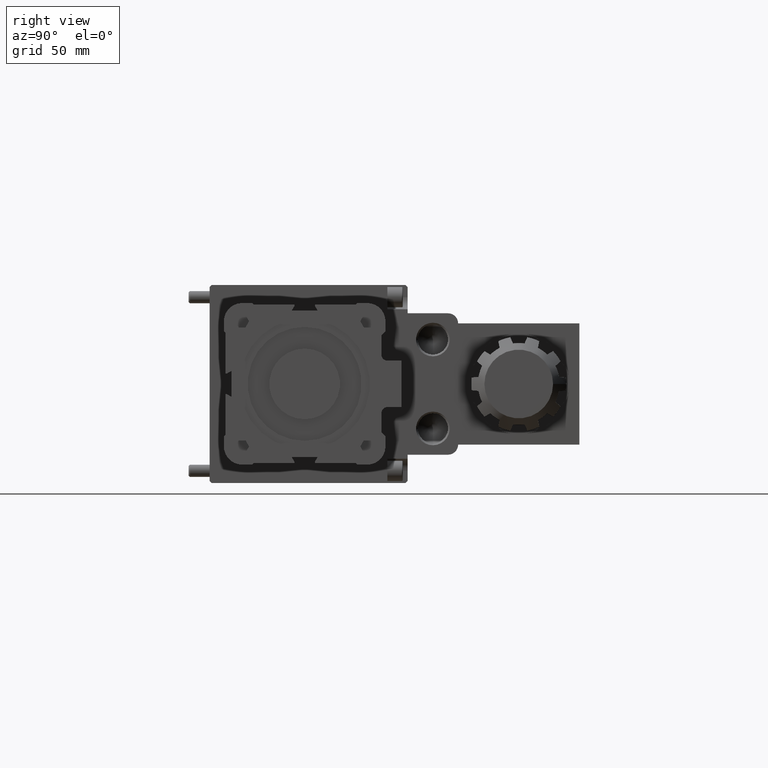
[diagram: clean part render]
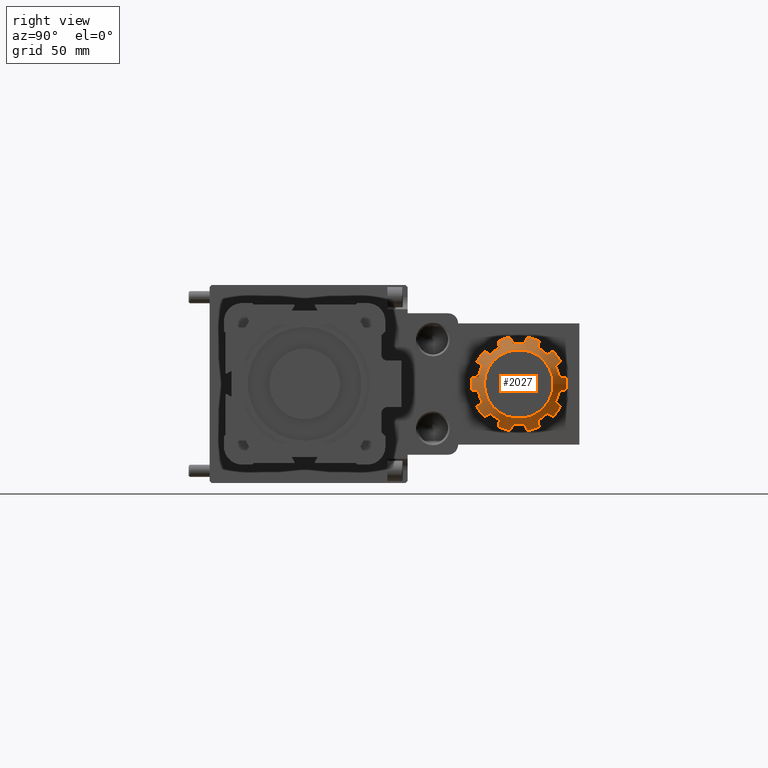
[diagram: same view with one face highlighted and labeled with its STEP entity id]
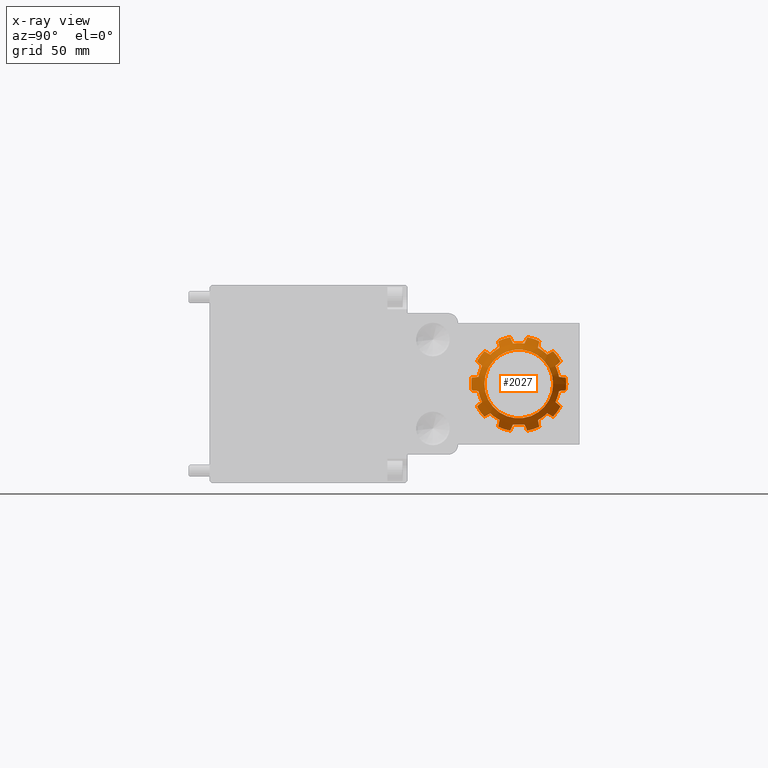
[diagram: x-ray of the same camera — body ghosted, the highlighted face saturated]
A machine part, right view. The second image highlights one B-rep face of the part: STEP entity #2027.
The next image is the same camera in x-ray: the body ghosted, the highlighted face saturated — about 0% of this face is hidden behind the body in this view.
In plain terms, the highlighted conical surface has half-angle 45 deg.
Its self-contained STEP definition (entity closure, byte-faithful):
#2027 = ADVANCED_FACE( '', ( #4268, #4269 ), #4270, .T. );
#4268 = FACE_OUTER_BOUND( '', #6651, .T. );
#4269 = FACE_BOUND( '', #6652, .T. );
#4270 = CONICAL_SURFACE( '', #6653, 17.0000000000000, 0.785398163397448 );
#6651 = EDGE_LOOP( '', ( #11964, #11965, #11966, #11967, #11968, #11969, #11970, #11971, #11972, #11973, #11974, #11975, #11976, #11977, #11978, #11979, #11980, #11981, #11982, #11983, #11984, #11985, #11986, #11987, #11988, #11989, #11990, #11991, #11992, #11993, #11994, #11995, #11996, #11997, #11998, #11999, #12000, #12001, #12002, #12003 ) );
#6652 = EDGE_LOOP( '', ( #12004 ) );
#6653 = AXIS2_PLACEMENT_3D( '', #12005, #12006, #12007 );
#11964 = ORIENTED_EDGE( '', *, *, #13402, .T. );
#11965 = ORIENTED_EDGE( '', *, *, #13419, .T. );
#11966 = ORIENTED_EDGE( '', *, *, #15270, .F. );
#11967 = ORIENTED_EDGE( '', *, *, #15248, .T. );
#11968 = ORIENTED_EDGE( '', *, *, #15295, .T. );
#11969 = ORIENTED_EDGE( '', *, *, #14880, .T. );
#11970 = ORIENTED_EDGE( '', *, *, #14302, .F. );
#11971 = ORIENTED_EDGE( '', *, *, #14839, .T. );
#11972 = ORIENTED_EDGE( '', *, *, #15296, .T. );
#11973 = ORIENTED_EDGE( '', *, *, #13453, .T. );
#11974 = ORIENTED_EDGE( '', *, *, #14888, .F. );
#11975 = ORIENTED_EDGE( '', *, *, #13285, .T. );
#11976 = ORIENTED_EDGE( '', *, *, #14863, .T. );
#11977 = ORIENTED_EDGE( '', *, *, #15261, .T. );
#11978 = ORIENTED_EDGE( '', *, *, #15268, .F. );
#11979 = ORIENTED_EDGE( '', *, *, #13685, .T. );
#11980 = ORIENTED_EDGE( '', *, *, #15297, .T. );
#11981 = ORIENTED_EDGE( '', *, *, #15080, .T. );
#11982 = ORIENTED_EDGE( '', *, *, #15191, .F. );
#11983 = ORIENTED_EDGE( '', *, *, #14650, .T. );
#11984 = ORIENTED_EDGE( '', *, *, #14299, .T. );
#11985 = ORIENTED_EDGE( '', *, *, #15298, .T. );
#11986 = ORIENTED_EDGE( '', *, *, #15299, .F. );
#11987 = ORIENTED_EDGE( '', *, *, #14364, .T. );
#11988 = ORIENTED_EDGE( '', *, *, #15300, .T. );
#11989 = ORIENTED_EDGE( '', *, *, #13609, .T. );
#11990 = ORIENTED_EDGE( '', *, *, #14859, .F. );
#11991 = ORIENTED_EDGE( '', *, *, #14685, .T. );
#11992 = ORIENTED_EDGE( '', *, *, #14620, .T. );
#11993 = ORIENTED_EDGE( '', *, *, #14380, .T. );
#11994 = ORIENTED_EDGE( '', *, *, #15225, .F. );
#11995 = ORIENTED_EDGE( '', *, *, #15031, .T. );
#11996 = ORIENTED_EDGE( '', *, *, #15301, .T. );
#11997 = ORIENTED_EDGE( '', *, *, #13601, .T. );
#11998 = ORIENTED_EDGE( '', *, *, #15010, .F. );
#11999 = ORIENTED_EDGE( '', *, *, #14103, .T. );
#12000 = ORIENTED_EDGE( '', *, *, #13791, .T. );
#12001 = ORIENTED_EDGE( '', *, *, #15142, .T. );
#12002 = ORIENTED_EDGE( '', *, *, #14993, .F. );
#12003 = ORIENTED_EDGE( '', *, *, #14124, .T. );
#12004 = ORIENTED_EDGE( '', *, *, #15302, .T. );
#12005 = CARTESIAN_POINT( '', ( 0.000000000000000, 66.3000000000000, 0.000000000000000 ) );
#12006 = DIRECTION( '', ( -0.000000000000000, -1.00000000000000, -0.000000000000000 ) );
#12007 = DIRECTION( '', ( 0.000000000000000, 0.000000000000000, -1.00000000000000 ) );
#13285 = EDGE_CURVE( '', #15667, #15671, #15673, .T. );
#13402 = EDGE_CURVE( '', #15870, #15875, #15877, .F. );
#13419 = EDGE_CURVE( '', #15875, #15902, #15904, .T. );
#13453 = EDGE_CURVE( '', #15957, #15962, #15964, .T. );
#13601 = EDGE_CURVE( '', #16211, #16216, #16218, .T. );
#13609 = EDGE_CURVE( '', #16223, #16228, #16230, .T. );
#13685 = EDGE_CURVE( '', #16351, #16355, #16357, .T. );
#13791 = EDGE_CURVE( '', #16533, #16538, #16540, .F. );
#14103 = EDGE_CURVE( '', #17039, #16533, #17042, .T. );
#14124 = EDGE_CURVE( '', #17072, #15870, #17075, .T. );
#14299 = EDGE_CURVE( '', #17336, #17340, #17342, .F. );
#14302 = EDGE_CURVE( '', #17344, #17346, #17347, .T. );
#14364 = EDGE_CURVE( '', #17435, #17437, #17439, .T. );
#14380 = EDGE_CURVE( '', #17458, #17460, #17462, .T. );
#14620 = EDGE_CURVE( '', #17812, #17458, #17816, .F. );
#14650 = EDGE_CURVE( '', #17858, #17336, #17861, .T. );
#14685 = EDGE_CURVE( '', #17904, #17812, #17907, .T. );
#14839 = EDGE_CURVE( '', #17344, #18145, #18147, .T. );
#14859 = EDGE_CURVE( '', #17904, #16228, #18172, .T. );
#14863 = EDGE_CURVE( '', #15671, #18176, #18178, .F. );
#14880 = EDGE_CURVE( '', #18197, #17346, #18199, .T. );
#14888 = EDGE_CURVE( '', #15667, #15962, #18211, .T. );
#14993 = EDGE_CURVE( '', #17072, #18342, #18343, .T. );
#15010 = EDGE_CURVE( '', #17039, #16216, #18362, .T. );
#15031 = EDGE_CURVE( '', #18385, #18387, #18389, .T. );
#15080 = EDGE_CURVE( '', #18448, #18450, #18452, .T. );
#15142 = EDGE_CURVE( '', #16538, #18342, #18534, .T. );
#15191 = EDGE_CURVE( '', #17858, #18450, #18594, .T. );
#15225 = EDGE_CURVE( '', #18385, #17460, #18631, .T. );
#15248 = EDGE_CURVE( '', #18653, #18655, #18657, .T. );
#15261 = EDGE_CURVE( '', #18176, #18670, #18672, .T. );
#15268 = EDGE_CURVE( '', #16351, #18670, #18680, .T. );
#15270 = EDGE_CURVE( '', #18653, #15902, #18682, .T. );
#15295 = EDGE_CURVE( '', #18655, #18197, #18714, .F. );
#15296 = EDGE_CURVE( '', #18145, #15957, #18715, .F. );
#15297 = EDGE_CURVE( '', #16355, #18448, #18716, .F. );
#15298 = EDGE_CURVE( '', #17340, #18717, #18718, .T. );
#15299 = EDGE_CURVE( '', #17435, #18717, #18719, .T. );
#15300 = EDGE_CURVE( '', #17437, #16223, #18720, .F. );
#15301 = EDGE_CURVE( '', #18387, #16211, #18721, .F. );
#15302 = EDGE_CURVE( '', #18722, #18722, #18723, .T. );
#15667 = VERTEX_POINT( '', #19166 );
#15671 = VERTEX_POINT( '', #19176 );
#15673 = B_SPLINE_CURVE_WITH_KNOTS( '', 3, ( #19179, #19180, #19181, #19182 ), .UNSPECIFIED., .F., .F., ( 4, 4 ), ( 2.87013076695435E-007, 0.00467583338042863 ), .UNSPECIFIED. );
#15870 = VERTEX_POINT( '', #19436 );
#15875 = VERTEX_POINT( '', #19442 );
#15877 = CIRCLE( '', #19445, 20.2500000000001 );
#15902 = VERTEX_POINT( '', #19485 );
#15904 = B_SPLINE_CURVE_WITH_KNOTS( '', 3, ( #19490, #19491, #19492, #19493 ), .UNSPECIFIED., .F., .F., ( 4, 4 ), ( 3.03705268467191E-007, 0.00467585007262032 ), .UNSPECIFIED. );
#15957 = VERTEX_POINT( '', #19565 );
#15962 = VERTEX_POINT( '', #19574 );
#15964 = B_SPLINE_CURVE_WITH_KNOTS( '', 3, ( #19579, #19580, #19581, #19582 ), .UNSPECIFIED., .F., .F., ( 4, 4 ), ( 2.78976837700774E-007, 0.00467582534418924 ), .UNSPECIFIED. );
#16211 = VERTEX_POINT( '', #19911 );
#16216 = VERTEX_POINT( '', #19920 );
#16218 = B_SPLINE_CURVE_WITH_KNOTS( '', 3, ( #19925, #19926, #19927, #19928 ), .UNSPECIFIED., .F., .F., ( 4, 4 ), ( 3.73343857071576E-007, 0.00467591971120885 ), .UNSPECIFIED. );
#16223 = VERTEX_POINT( '', #19933 );
#16228 = VERTEX_POINT( '', #19942 );
#16230 = B_SPLINE_CURVE_WITH_KNOTS( '', 3, ( #19947, #19948, #19949, #19950 ), .UNSPECIFIED., .F., .F., ( 4, 4 ), ( 3.20370007642385E-007, 0.00467586673735965 ), .UNSPECIFIED. );
#16351 = VERTEX_POINT( '', #20110 );
#16355 = VERTEX_POINT( '', #20120 );
#16357 = B_SPLINE_CURVE_WITH_KNOTS( '', 3, ( #20123, #20124, #20125, #20126 ), .UNSPECIFIED., .F., .F., ( 4, 4 ), ( 2.87013076679429E-007, 0.00467583338042862 ), .UNSPECIFIED. );
#16533 = VERTEX_POINT( '', #20367 );
#16538 = VERTEX_POINT( '', #20373 );
#16540 = CIRCLE( '', #20376, 20.2499999999995 );
#17039 = VERTEX_POINT( '', #21068 );
#17042 = B_SPLINE_CURVE_WITH_KNOTS( '', 3, ( #21077, #21078, #21079, #21080 ), .UNSPECIFIED., .F., .F., ( 4, 4 ), ( 2.87013076679429E-007, 0.00467583338042860 ), .UNSPECIFIED. );
#17072 = VERTEX_POINT( '', #21121 );
#17075 = B_SPLINE_CURVE_WITH_KNOTS( '', 3, ( #21130, #21131, #21132, #21133 ), .UNSPECIFIED., .F., .F., ( 4, 4 ), ( 2.87013076686823E-007, 0.00467583338042861 ), .UNSPECIFIED. );
#17336 = VERTEX_POINT( '', #21497 );
#17340 = VERTEX_POINT( '', #21502 );
#17342 = CIRCLE( '', #21505, 20.2499999999998 );
#17344 = VERTEX_POINT( '', #21507 );
#17346 = VERTEX_POINT( '', #21512 );
#17347 = CIRCLE( '', #21513, 23.5000000000000 );
#17435 = VERTEX_POINT( '', #21631 );
#17437 = VERTEX_POINT( '', #21636 );
#17439 = B_SPLINE_CURVE_WITH_KNOTS( '', 3, ( #21639, #21640, #21641, #21642 ), .UNSPECIFIED., .F., .F., ( 4, 4 ), ( 2.87013076696704E-007, 0.00467583338042864 ), .UNSPECIFIED. );
#17458 = VERTEX_POINT( '', #21669 );
#17460 = VERTEX_POINT( '', #21672 );
#17462 = B_SPLINE_CURVE_WITH_KNOTS( '', 3, ( #21677, #21678, #21679, #21680 ), .UNSPECIFIED., .F., .F., ( 4, 4 ), ( 2.78976837415228E-007, 0.00467582534418924 ), .UNSPECIFIED. );
#17812 = VERTEX_POINT( '', #22144 );
#17816 = CIRCLE( '', #22149, 20.2500000000001 );
#17858 = VERTEX_POINT( '', #22203 );
#17861 = B_SPLINE_CURVE_WITH_KNOTS( '', 3, ( #22212, #22213, #22214, #22215 ), .UNSPECIFIED., .F., .F., ( 4, 4 ), ( 2.87013076686823E-007, 0.00467583338042862 ), .UNSPECIFIED. );
#17904 = VERTEX_POINT( '', #22270 );
#17907 = B_SPLINE_CURVE_WITH_KNOTS( '', 3, ( #22279, #22280, #22281, #22282 ), .UNSPECIFIED., .F., .F., ( 4, 4 ), ( 2.87013076661730E-007, 0.00467583338042857 ), .UNSPECIFIED. );
#18145 = VERTEX_POINT( '', #22613 );
#18147 = B_SPLINE_CURVE_WITH_KNOTS( '', 3, ( #22616, #22617, #22618, #22619 ), .UNSPECIFIED., .F., .F., ( 4, 4 ), ( 2.87013076661730E-007, 0.00467583338042857 ), .UNSPECIFIED. );
#18172 = CIRCLE( '', #22653, 23.5000000000000 );
#18176 = VERTEX_POINT( '', #22657 );
#18178 = CIRCLE( '', #22660, 20.2499999999998 );
#18197 = VERTEX_POINT( '', #22685 );
#18199 = B_SPLINE_CURVE_WITH_KNOTS( '', 3, ( #22688, #22689, #22690, #22691 ), .UNSPECIFIED., .F., .F., ( 4, 4 ), ( 3.20370007484777E-007, 0.00467586673735965 ), .UNSPECIFIED. );
#18211 = CIRCLE( '', #22705, 23.5000000000000 );
#18342 = VERTEX_POINT( '', #22885 );
#18343 = CIRCLE( '', #22886, 23.5000000000000 );
#18362 = CIRCLE( '', #22913, 23.5000000000000 );
#18385 = VERTEX_POINT( '', #22945 );
#18387 = VERTEX_POINT( '', #22950 );
#18389 = B_SPLINE_CURVE_WITH_KNOTS( '', 3, ( #22953, #22954, #22955, #22956 ), .UNSPECIFIED., .F., .F., ( 4, 4 ), ( 2.87013076695435E-007, 0.00467583338042862 ), .UNSPECIFIED. );
#18448 = VERTEX_POINT( '', #23031 );
#18450 = VERTEX_POINT( '', #23034 );
#18452 = B_SPLINE_CURVE_WITH_KNOTS( '', 3, ( #23039, #23040, #23041, #23042 ), .UNSPECIFIED., .F., .F., ( 4, 4 ), ( 2.83646938132747E-007, 0.00467583001429022 ), .UNSPECIFIED. );
#18534 = B_SPLINE_CURVE_WITH_KNOTS( '', 3, ( #23156, #23157, #23158, #23159 ), .UNSPECIFIED., .F., .F., ( 4, 4 ), ( 2.83646937936725E-007, 0.00467583001429022 ), .UNSPECIFIED. );
#18594 = CIRCLE( '', #23248, 23.5000000000000 );
#18631 = CIRCLE( '', #23296, 23.5000000000000 );
#18653 = VERTEX_POINT( '', #23326 );
#18655 = VERTEX_POINT( '', #23331 );
#18657 = B_SPLINE_CURVE_WITH_KNOTS( '', 3, ( #23334, #23335, #23336, #23337 ), .UNSPECIFIED., .F., .F., ( 4, 4 ), ( 2.87013076694265E-007, 0.00467583338042862 ), .UNSPECIFIED. );
#18670 = VERTEX_POINT( '', #23353 );
#18672 = B_SPLINE_CURVE_WITH_KNOTS( '', 3, ( #23358, #23359, #23360, #23361 ), .UNSPECIFIED., .F., .F., ( 4, 4 ), ( 3.73343856809259E-007, 0.00467591971120885 ), .UNSPECIFIED. );
#18680 = CIRCLE( '', #23373, 23.5000000000000 );
#18682 = CIRCLE( '', #23375, 23.5000000000000 );
#18714 = CIRCLE( '', #23417, 20.2499999999997 );
#18715 = CIRCLE( '', #23418, 20.2500000000006 );
#18716 = CIRCLE( '', #23419, 20.2499999999998 );
#18717 = VERTEX_POINT( '', #23420 );
#18718 = B_SPLINE_CURVE_WITH_KNOTS( '', 3, ( #23421, #23422, #23423, #23424 ), .UNSPECIFIED., .F., .F., ( 4, 4 ), ( 3.03705268213642E-007, 0.00467585007262032 ), .UNSPECIFIED. );
#18719 = CIRCLE( '', #23425, 23.5000000000000 );
#18720 = CIRCLE( '', #23426, 20.2499999999999 );
#18721 = CIRCLE( '', #23427, 20.2500000000002 );
#18722 = VERTEX_POINT( '', #23428 );
#18723 = CIRCLE( '', #23429, 17.0000000000000 );
#19166 = CARTESIAN_POINT( '', ( -3.14865009127141, 59.8000000000000, -23.2881086093898 ) );
#19176 = CARTESIAN_POINT( '', ( -3.50000000000000, 63.0500000000000, -19.9452375267882 ) );
#19179 = CARTESIAN_POINT( '', ( -3.14865009127141, 59.8000000000000, -23.2881086093898 ) );
#19180 = CARTESIAN_POINT( '', ( -3.26549480163474, 60.8860238637854, -22.1764054504451 ) );
#19181 = CARTESIAN_POINT( '', ( -3.38256620448099, 61.9698047522806, -21.0625454565987 ) );
#19182 = CARTESIAN_POINT( '', ( -3.50000000000000, 63.0500000000000, -19.9452375267882 ) );
#19436 = CARTESIAN_POINT( '', ( 20.0506075992189, 63.0500000000000, 2.83471954558946 ) );
#19442 = CARTESIAN_POINT( '', ( 20.0506075992189, 63.0499999999999, -2.83471954558946 ) );
#19445 = AXIS2_PLACEMENT_3D( '', #23953, #23954, #23955 );
#19485 = CARTESIAN_POINT( '', ( 23.1212938326926, 59.8000000000000, -4.20187714031397 ) );
#19490 = CARTESIAN_POINT( '', ( 20.0506075992189, 63.0500000000000, -2.83471954558948 ) );
#19491 = CARTESIAN_POINT( '', ( 21.0769415480015, 61.9698047523254, -3.29167286029348 ) );
#19492 = CARTESIAN_POINT( '', ( 22.1001083003610, 60.8860238638240, -3.74721604829790 ) );
#19493 = CARTESIAN_POINT( '', ( 23.1212938326926, 59.8000000000000, -4.20187714031397 ) );
#19565 = CARTESIAN_POINT( '', ( 3.50000000000000, 63.0499999999994, -19.9452375267882 ) );
#19574 = CARTESIAN_POINT( '', ( 3.14865009127141, 59.8000000000000, -23.2881086093898 ) );
#19579 = CARTESIAN_POINT( '', ( 3.49999999999997, 63.0499999999997, -19.9452375267885 ) );
#19580 = CARTESIAN_POINT( '', ( 3.38256620448097, 61.9698047522804, -21.0625454565989 ) );
#19581 = CARTESIAN_POINT( '', ( 3.26549480163473, 60.8860238637853, -22.1764054504452 ) );
#19582 = CARTESIAN_POINT( '', ( 3.14865009127141, 59.8000000000000, -23.2881086093898 ) );
#19911 = CARTESIAN_POINT( '', ( 8.89195699140418, 63.0499999999998, 18.1932844990403 ) );
#19920 = CARTESIAN_POINT( '', ( 11.1410953612059, 59.8000000000000, 20.6912057201246 ) );
#19925 = CARTESIAN_POINT( '', ( 8.89195699140424, 63.0499999999999, 18.1932844990403 ) );
#19926 = CARTESIAN_POINT( '', ( 9.64370005098608, 61.9698047524516, 19.0281797489479 ) );
#19927 = CARTESIAN_POINT( '', ( 10.3931232829630, 60.8860238639328, 19.8604985692852 ) );
#19928 = CARTESIAN_POINT( '', ( 11.1410953612059, 59.8000000000000, 20.6912057201246 ) );
#19933 = CARTESIAN_POINT( '', ( -14.5550759520288, 63.0500000000001, 14.0787877329929 ) );
#19942 = CARTESIAN_POINT( '', ( -16.2357182275635, 59.8000000000000, 16.9897455435672 ) );
#19947 = CARTESIAN_POINT( '', ( -14.5550759520288, 63.0500000000001, 14.0787877329929 ) );
#19948 = CARTESIAN_POINT( '', ( -15.1168071391130, 61.9698047523556, 15.0517346892187 ) );
#19949 = CARTESIAN_POINT( '', ( -15.6768048621623, 60.8860238638501, 16.0216791976630 ) );
#19950 = CARTESIAN_POINT( '', ( -16.2357182275635, 59.8000000000000, 16.9897455435672 ) );
#20110 = CARTESIAN_POINT( '', ( -16.2357182275635, 59.8000000000000, -16.9897455435672 ) );
#20120 = CARTESIAN_POINT( '', ( -14.5550759520288, 63.0500000000000, -14.0787877329929 ) );
#20123 = CARTESIAN_POINT( '', ( -16.2357182275635, 59.8000000000000, -16.9897455435672 ) );
#20124 = CARTESIAN_POINT( '', ( -15.6768048621623, 60.8860238638501, -16.0216791976630 ) );
#20125 = CARTESIAN_POINT( '', ( -15.1168071391130, 61.9698047523556, -15.0517346892188 ) );
#20126 = CARTESIAN_POINT( '', ( -14.5550759520288, 63.0500000000000, -14.0787877329929 ) );
#20367 = CARTESIAN_POINT( '', ( 14.5550759520288, 63.0500000000000, 14.0787877329929 ) );
#20373 = CARTESIAN_POINT( '', ( 17.8874886385942, 63.0500000000005, 9.49211515965554 ) );
#20376 = AXIS2_PLACEMENT_3D( '', #24383, #24384, #24385 );
#21068 = CARTESIAN_POINT( '', ( 16.2357182275635, 59.8000000000000, 16.9897455435672 ) );
#21077 = CARTESIAN_POINT( '', ( 16.2357182275635, 59.8000000000000, 16.9897455435672 ) );
#21078 = CARTESIAN_POINT( '', ( 15.6768048621623, 60.8860238638501, 16.0216791976630 ) );
#21079 = CARTESIAN_POINT( '', ( 15.1168071391130, 61.9698047523556, 15.0517346892188 ) );
#21080 = CARTESIAN_POINT( '', ( 14.5550759520288, 63.0500000000000, 14.0787877329929 ) );
#21121 = CARTESIAN_POINT( '', ( 23.1212938326926, 59.8000000000000, 4.20187714031397 ) );
#21130 = CARTESIAN_POINT( '', ( 23.1212938326926, 59.8000000000000, 4.20187714031397 ) );
#21131 = CARTESIAN_POINT( '', ( 22.1001083003610, 60.8860238638240, 3.74721604829790 ) );
#21132 = CARTESIAN_POINT( '', ( 21.0769415480015, 61.9698047523254, 3.29167286029346 ) );
#21133 = CARTESIAN_POINT( '', ( 20.0506075992189, 63.0500000000000, 2.83471954558946 ) );
#21497 = CARTESIAN_POINT( '', ( -20.0506075992189, 63.0500000000000, -2.83471954558945 ) );
#21502 = CARTESIAN_POINT( '', ( -20.0506075992189, 63.0500000000002, 2.83471954558945 ) );
#21505 = AXIS2_PLACEMENT_3D( '', #24932, #24933, #24934 );
#21507 = CARTESIAN_POINT( '', ( 11.1410953612059, 59.8000000000000, -20.6912057201246 ) );
#21512 = CARTESIAN_POINT( '', ( 16.2357182275635, 59.8000000000000, -16.9897455435672 ) );
#21513 = AXIS2_PLACEMENT_3D( '', #24935, #24936, #24937 );
#21631 = CARTESIAN_POINT( '', ( -21.1753210576064, 59.8000000000000, 10.1909655139880 ) );
#21636 = CARTESIAN_POINT( '', ( -17.8874886385942, 63.0500000000000, 9.49211515965553 ) );
#21639 = CARTESIAN_POINT( '', ( -21.1753210576064, 59.8000000000000, 10.1909655139880 ) );
#21640 = CARTESIAN_POINT( '', ( -20.0819215228936, 60.8860238637927, 9.95855626835784 ) );
#21641 = CARTESIAN_POINT( '', ( -18.9864006644695, 61.9698047522891, 9.72569612145342 ) );
#21642 = CARTESIAN_POINT( '', ( -17.8874886385942, 63.0500000000000, 9.49211515965553 ) );
#21669 = CARTESIAN_POINT( '', ( -3.50000000000001, 63.0499999999999, 19.9452375267882 ) );
#21672 = CARTESIAN_POINT( '', ( -3.14865009127141, 59.8000000000000, 23.2881086093898 ) );
#21677 = CARTESIAN_POINT( '', ( -3.50000000000000, 63.0499999999999, 19.9452375267883 ) );
#21678 = CARTESIAN_POINT( '', ( -3.38256620448099, 61.9698047522805, 21.0625454565987 ) );
#21679 = CARTESIAN_POINT( '', ( -3.26549480163474, 60.8860238637854, 22.1764054504451 ) );
#21680 = CARTESIAN_POINT( '', ( -3.14865009127141, 59.8000000000000, 23.2881086093898 ) );
#22144 = CARTESIAN_POINT( '', ( -8.89195699140417, 63.0500000000000, 18.1932844990403 ) );
#22149 = AXIS2_PLACEMENT_3D( '', #25300, #25301, #25302 );
#22203 = CARTESIAN_POINT( '', ( -23.1212938326926, 59.8000000000000, -4.20187714031397 ) );
#22212 = CARTESIAN_POINT( '', ( -23.1212938326926, 59.8000000000000, -4.20187714031397 ) );
#22213 = CARTESIAN_POINT( '', ( -22.1001083003610, 60.8860238638240, -3.74721604829790 ) );
#22214 = CARTESIAN_POINT( '', ( -21.0769415480015, 61.9698047523254, -3.29167286029346 ) );
#22215 = CARTESIAN_POINT( '', ( -20.0506075992189, 63.0500000000000, -2.83471954558946 ) );
#22270 = CARTESIAN_POINT( '', ( -11.1410953612059, 59.8000000000000, 20.6912057201246 ) );
#22279 = CARTESIAN_POINT( '', ( -11.1410953612059, 59.8000000000000, 20.6912057201246 ) );
#22280 = CARTESIAN_POINT( '', ( -10.3931232829629, 60.8860238639328, 19.8604985692851 ) );
#22281 = CARTESIAN_POINT( '', ( -9.64370005098603, 61.9698047524516, 19.0281797489479 ) );
#22282 = CARTESIAN_POINT( '', ( -8.89195699140418, 63.0500000000000, 18.1932844990403 ) );
#22613 = CARTESIAN_POINT( '', ( 8.89195699140418, 63.0500000000000, -18.1932844990403 ) );
#22616 = CARTESIAN_POINT( '', ( 11.1410953612059, 59.8000000000000, -20.6912057201246 ) );
#22617 = CARTESIAN_POINT( '', ( 10.3931232829629, 60.8860238639328, -19.8604985692851 ) );
#22618 = CARTESIAN_POINT( '', ( 9.64370005098604, 61.9698047524516, -19.0281797489479 ) );
#22619 = CARTESIAN_POINT( '', ( 8.89195699140418, 63.0500000000000, -18.1932844990403 ) );
#22653 = AXIS2_PLACEMENT_3D( '', #25601, #25602, #25603 );
#22657 = CARTESIAN_POINT( '', ( -8.89195699140417, 63.0500000000002, -18.1932844990403 ) );
#22660 = AXIS2_PLACEMENT_3D( '', #25608, #25609, #25610 );
#22685 = CARTESIAN_POINT( '', ( 14.5550759520288, 63.0500000000003, -14.0787877329929 ) );
#22688 = CARTESIAN_POINT( '', ( 14.5550759520287, 63.0500000000002, -14.0787877329928 ) );
#22689 = CARTESIAN_POINT( '', ( 15.1168071391130, 61.9698047523557, -15.0517346892187 ) );
#22690 = CARTESIAN_POINT( '', ( 15.6768048621623, 60.8860238638501, -16.0216791976629 ) );
#22691 = CARTESIAN_POINT( '', ( 16.2357182275635, 59.8000000000000, -16.9897455435672 ) );
#22705 = AXIS2_PLACEMENT_3D( '', #25641, #25642, #25643 );
#22885 = CARTESIAN_POINT( '', ( 21.1753210576064, 59.8000000000000, 10.1909655139880 ) );
#22886 = AXIS2_PLACEMENT_3D( '', #25726, #25727, #25728 );
#22913 = AXIS2_PLACEMENT_3D( '', #25743, #25744, #25745 );
#22945 = CARTESIAN_POINT( '', ( 3.14865009127141, 59.8000000000000, 23.2881086093898 ) );
#22950 = CARTESIAN_POINT( '', ( 3.50000000000000, 63.0500000000000, 19.9452375267882 ) );
#22953 = CARTESIAN_POINT( '', ( 3.14865009127141, 59.8000000000000, 23.2881086093898 ) );
#22954 = CARTESIAN_POINT( '', ( 3.26549480163474, 60.8860238637854, 22.1764054504451 ) );
#22955 = CARTESIAN_POINT( '', ( 3.38256620448099, 61.9698047522806, 21.0625454565987 ) );
#22956 = CARTESIAN_POINT( '', ( 3.50000000000000, 63.0500000000000, 19.9452375267882 ) );
#23031 = CARTESIAN_POINT( '', ( -17.8874886385942, 63.0500000000002, -9.49211515965553 ) );
#23034 = CARTESIAN_POINT( '', ( -21.1753210576064, 59.8000000000000, -10.1909655139880 ) );
#23039 = CARTESIAN_POINT( '', ( -17.8874886385941, 63.0500000000001, -9.49211515965551 ) );
#23040 = CARTESIAN_POINT( '', ( -18.9864006644694, 61.9698047522891, -9.72569612145340 ) );
#23041 = CARTESIAN_POINT( '', ( -20.0819215228936, 60.8860238637927, -9.95855626835784 ) );
#23042 = CARTESIAN_POINT( '', ( -21.1753210576064, 59.8000000000000, -10.1909655139880 ) );
#23156 = CARTESIAN_POINT( '', ( 17.8874886385940, 63.0500000000002, 9.49211515965549 ) );
#23157 = CARTESIAN_POINT( '', ( 18.9864006644693, 61.9698047522892, 9.72569612145339 ) );
#23158 = CARTESIAN_POINT( '', ( 20.0819215228935, 60.8860238637928, 9.95855626835783 ) );
#23159 = CARTESIAN_POINT( '', ( 21.1753210576064, 59.8000000000000, 10.1909655139880 ) );
#23248 = AXIS2_PLACEMENT_3D( '', #25906, #25907, #25908 );
#23296 = AXIS2_PLACEMENT_3D( '', #25935, #25936, #25937 );
#23326 = CARTESIAN_POINT( '', ( 21.1753210576064, 59.8000000000000, -10.1909655139880 ) );
#23331 = CARTESIAN_POINT( '', ( 17.8874886385942, 63.0500000000000, -9.49211515965554 ) );
#23334 = CARTESIAN_POINT( '', ( 21.1753210576064, 59.8000000000000, -10.1909655139880 ) );
#23335 = CARTESIAN_POINT( '', ( 20.0819215228936, 60.8860238637927, -9.95855626835785 ) );
#23336 = CARTESIAN_POINT( '', ( 18.9864006644695, 61.9698047522891, -9.72569612145342 ) );
#23337 = CARTESIAN_POINT( '', ( 17.8874886385942, 63.0500000000000, -9.49211515965554 ) );
#23353 = CARTESIAN_POINT( '', ( -11.1410953612059, 59.8000000000000, -20.6912057201246 ) );
#23358 = CARTESIAN_POINT( '', ( -8.89195699140412, 63.0500000000001, -18.1932844990402 ) );
#23359 = CARTESIAN_POINT( '', ( -9.64370005098600, 61.9698047524517, -19.0281797489478 ) );
#23360 = CARTESIAN_POINT( '', ( -10.3931232829629, 60.8860238639329, -19.8604985692851 ) );
#23361 = CARTESIAN_POINT( '', ( -11.1410953612059, 59.8000000000000, -20.6912057201246 ) );
#23373 = AXIS2_PLACEMENT_3D( '', #25957, #25958, #25959 );
#23375 = AXIS2_PLACEMENT_3D( '', #25960, #25961, #25962 );
#23417 = AXIS2_PLACEMENT_3D( '', #25991, #25992, #25993 );
#23418 = AXIS2_PLACEMENT_3D( '', #25994, #25995, #25996 );
#23419 = AXIS2_PLACEMENT_3D( '', #25997, #25998, #25999 );
#23420 = CARTESIAN_POINT( '', ( -23.1212938326926, 59.8000000000000, 4.20187714031397 ) );
#23421 = CARTESIAN_POINT( '', ( -20.0506075992187, 63.0500000000001, 2.83471954558941 ) );
#23422 = CARTESIAN_POINT( '', ( -21.0769415480014, 61.9698047523255, 3.29167286029343 ) );
#23423 = CARTESIAN_POINT( '', ( -22.1001083003610, 60.8860238638241, 3.74721604829788 ) );
#23424 = CARTESIAN_POINT( '', ( -23.1212938326926, 59.8000000000000, 4.20187714031398 ) );
#23425 = AXIS2_PLACEMENT_3D( '', #26000, #26001, #26002 );
#23426 = AXIS2_PLACEMENT_3D( '', #26003, #26004, #26005 );
#23427 = AXIS2_PLACEMENT_3D( '', #26006, #26007, #26008 );
#23428 = CARTESIAN_POINT( '', ( 0.000000000000000, 66.3000000000000, -17.0000000000000 ) );
#23429 = AXIS2_PLACEMENT_3D( '', #26009, #26010, #26011 );
#23953 = CARTESIAN_POINT( '', ( 0.000000000000000, 63.0499999999999, 0.000000000000000 ) );
#23954 = DIRECTION( '', ( 0.000000000000000, -1.00000000000000, -0.000000000000000 ) );
#23955 = DIRECTION( '', ( 0.000000000000000, 0.000000000000000, -1.00000000000000 ) );
#24383 = CARTESIAN_POINT( '', ( 0.000000000000000, 63.0500000000005, 0.000000000000000 ) );
#24384 = DIRECTION( '', ( 0.000000000000000, -1.00000000000000, -0.000000000000000 ) );
#24385 = DIRECTION( '', ( 0.000000000000000, 0.000000000000000, -1.00000000000000 ) );
#24932 = CARTESIAN_POINT( '', ( 0.000000000000000, 63.0500000000002, 0.000000000000000 ) );
#24933 = DIRECTION( '', ( 0.000000000000000, -1.00000000000000, -0.000000000000000 ) );
#24934 = DIRECTION( '', ( 0.000000000000000, 0.000000000000000, -1.00000000000000 ) );
#24935 = CARTESIAN_POINT( '', ( 0.000000000000000, 59.8000000000000, 0.000000000000000 ) );
#24936 = DIRECTION( '', ( 0.000000000000000, -1.00000000000000, -0.000000000000000 ) );
#24937 = DIRECTION( '', ( 0.000000000000000, 0.000000000000000, -1.00000000000000 ) );
#25300 = CARTESIAN_POINT( '', ( 0.000000000000000, 63.0499999999999, 0.000000000000000 ) );
#25301 = DIRECTION( '', ( 0.000000000000000, -1.00000000000000, -0.000000000000000 ) );
#25302 = DIRECTION( '', ( 0.000000000000000, 0.000000000000000, -1.00000000000000 ) );
#25601 = CARTESIAN_POINT( '', ( 0.000000000000000, 59.8000000000000, 0.000000000000000 ) );
#25602 = DIRECTION( '', ( 0.000000000000000, -1.00000000000000, -0.000000000000000 ) );
#25603 = DIRECTION( '', ( 0.000000000000000, 0.000000000000000, -1.00000000000000 ) );
#25608 = CARTESIAN_POINT( '', ( 0.000000000000000, 63.0500000000002, 0.000000000000000 ) );
#25609 = DIRECTION( '', ( 0.000000000000000, -1.00000000000000, -0.000000000000000 ) );
#25610 = DIRECTION( '', ( 0.000000000000000, 0.000000000000000, -1.00000000000000 ) );
#25641 = CARTESIAN_POINT( '', ( 0.000000000000000, 59.8000000000000, 0.000000000000000 ) );
#25642 = DIRECTION( '', ( 0.000000000000000, -1.00000000000000, -0.000000000000000 ) );
#25643 = DIRECTION( '', ( 0.000000000000000, 0.000000000000000, -1.00000000000000 ) );
#25726 = CARTESIAN_POINT( '', ( 0.000000000000000, 59.8000000000000, 0.000000000000000 ) );
#25727 = DIRECTION( '', ( 0.000000000000000, -1.00000000000000, -0.000000000000000 ) );
#25728 = DIRECTION( '', ( 0.000000000000000, 0.000000000000000, -1.00000000000000 ) );
#25743 = CARTESIAN_POINT( '', ( 0.000000000000000, 59.8000000000000, 0.000000000000000 ) );
#25744 = DIRECTION( '', ( 0.000000000000000, -1.00000000000000, -0.000000000000000 ) );
#25745 = DIRECTION( '', ( 0.000000000000000, 0.000000000000000, -1.00000000000000 ) );
#25906 = CARTESIAN_POINT( '', ( 0.000000000000000, 59.8000000000000, 0.000000000000000 ) );
#25907 = DIRECTION( '', ( 0.000000000000000, -1.00000000000000, -0.000000000000000 ) );
#25908 = DIRECTION( '', ( 0.000000000000000, 0.000000000000000, -1.00000000000000 ) );
#25935 = CARTESIAN_POINT( '', ( 0.000000000000000, 59.8000000000000, 0.000000000000000 ) );
#25936 = DIRECTION( '', ( 0.000000000000000, -1.00000000000000, -0.000000000000000 ) );
#25937 = DIRECTION( '', ( 0.000000000000000, 0.000000000000000, -1.00000000000000 ) );
#25957 = CARTESIAN_POINT( '', ( 0.000000000000000, 59.8000000000000, 0.000000000000000 ) );
#25958 = DIRECTION( '', ( 0.000000000000000, -1.00000000000000, -0.000000000000000 ) );
#25959 = DIRECTION( '', ( 0.000000000000000, 0.000000000000000, -1.00000000000000 ) );
#25960 = CARTESIAN_POINT( '', ( 0.000000000000000, 59.8000000000000, 0.000000000000000 ) );
#25961 = DIRECTION( '', ( 0.000000000000000, -1.00000000000000, -0.000000000000000 ) );
#25962 = DIRECTION( '', ( 0.000000000000000, 0.000000000000000, -1.00000000000000 ) );
#25991 = CARTESIAN_POINT( '', ( 0.000000000000000, 63.0500000000003, 0.000000000000000 ) );
#25992 = DIRECTION( '', ( 0.000000000000000, -1.00000000000000, -0.000000000000000 ) );
#25993 = DIRECTION( '', ( 0.000000000000000, 0.000000000000000, -1.00000000000000 ) );
#25994 = CARTESIAN_POINT( '', ( 0.000000000000000, 63.0499999999994, 0.000000000000000 ) );
#25995 = DIRECTION( '', ( 0.000000000000000, -1.00000000000000, -0.000000000000000 ) );
#25996 = DIRECTION( '', ( 0.000000000000000, 0.000000000000000, -1.00000000000000 ) );
#25997 = CARTESIAN_POINT( '', ( 0.000000000000000, 63.0500000000002, 0.000000000000000 ) );
#25998 = DIRECTION( '', ( 0.000000000000000, -1.00000000000000, -0.000000000000000 ) );
#25999 = DIRECTION( '', ( 0.000000000000000, 0.000000000000000, -1.00000000000000 ) );
#26000 = CARTESIAN_POINT( '', ( 0.000000000000000, 59.8000000000000, 0.000000000000000 ) );
#26001 = DIRECTION( '', ( 0.000000000000000, -1.00000000000000, -0.000000000000000 ) );
#26002 = DIRECTION( '', ( 0.000000000000000, 0.000000000000000, -1.00000000000000 ) );
#26003 = CARTESIAN_POINT( '', ( 0.000000000000000, 63.0500000000001, 0.000000000000000 ) );
#26004 = DIRECTION( '', ( 0.000000000000000, -1.00000000000000, -0.000000000000000 ) );
#26005 = DIRECTION( '', ( 0.000000000000000, 0.000000000000000, -1.00000000000000 ) );
#26006 = CARTESIAN_POINT( '', ( 0.000000000000000, 63.0499999999998, 0.000000000000000 ) );
#26007 = DIRECTION( '', ( 0.000000000000000, -1.00000000000000, -0.000000000000000 ) );
#26008 = DIRECTION( '', ( 0.000000000000000, 0.000000000000000, -1.00000000000000 ) );
#26009 = CARTESIAN_POINT( '', ( 0.000000000000000, 66.3000000000000, 0.000000000000000 ) );
#26010 = DIRECTION( '', ( 0.000000000000000, -1.00000000000000, -0.000000000000000 ) );
#26011 = DIRECTION( '', ( 0.000000000000000, 0.000000000000000, -1.00000000000000 ) );